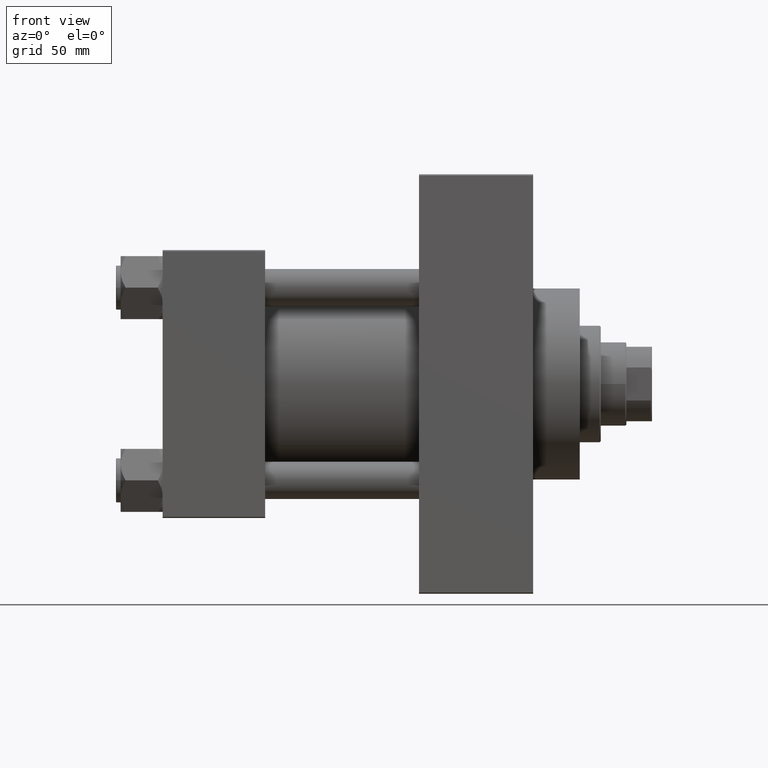
[diagram: clean part render]
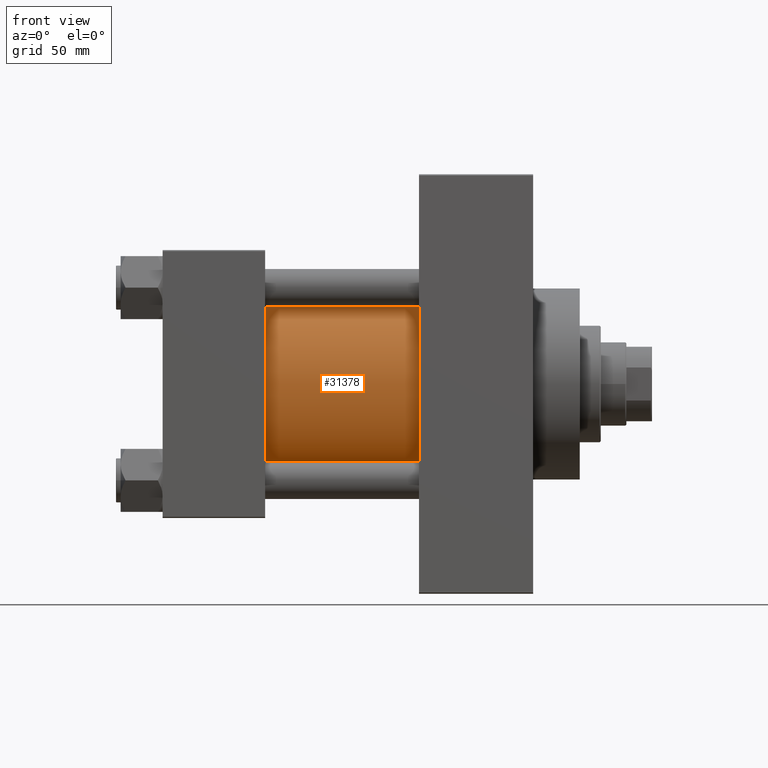
[diagram: same view with one face highlighted and labeled with its STEP entity id]
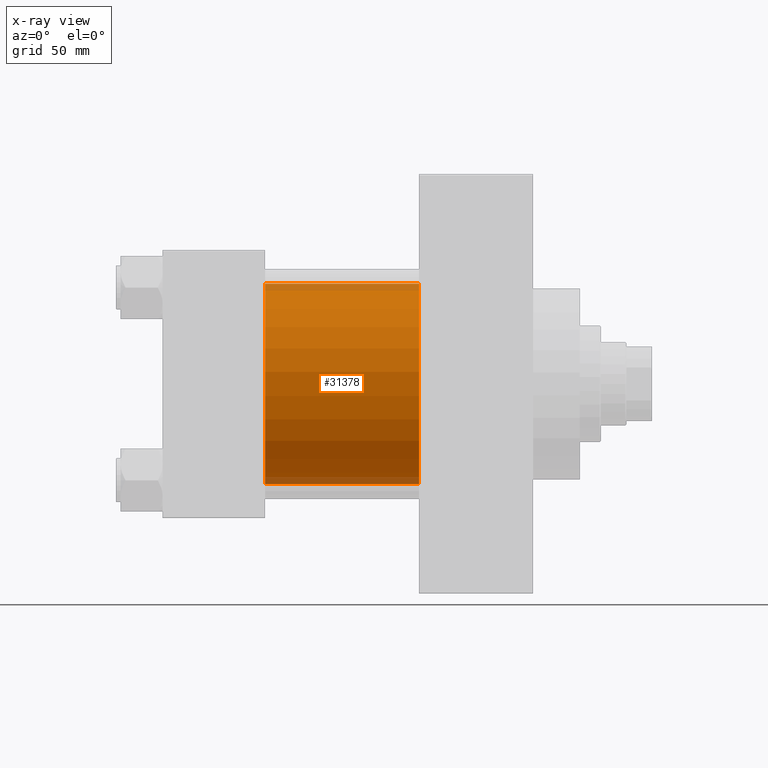
[diagram: x-ray of the same camera — body ghosted, the highlighted face saturated]
A machine part, front view. The second image highlights one B-rep face of the part: STEP entity #31378.
The next image is the same camera in x-ray: the body ghosted, the highlighted face saturated — about 7% of this face is hidden behind the body in this view.
In plain terms, the highlighted cylindrical surface (partial cylindrical patch) has radius 43 mm, axis along (-1, -0, -0).
Its self-contained STEP definition (entity closure, byte-faithful):
#1421 = CARTESIAN_POINT ( 'NONE',  ( 110.0000000000000000, -2.602085213965210642E-15, 0.000000000000000000 ) ) ;
#2237 = EDGE_CURVE ( 'NONE', #33188, #12917, #37916, .T. ) ;
#2295 = CARTESIAN_POINT ( 'NONE',  ( 110.0000000000000000, -2.602085213965210642E-15, 43.00000000000000000 ) ) ;
#4469 = CARTESIAN_POINT ( 'NONE',  ( 110.0000000000000000, -2.602085213965210642E-15, 43.00000000000000000 ) ) ;
#4617 = ORIENTED_EDGE ( 'NONE', *, *, #33350, .F. ) ;
#6974 = CARTESIAN_POINT ( 'NONE',  ( 44.00000000000000000, -2.602085213965210642E-15, 0.000000000000000000 ) ) ;
#9912 = CARTESIAN_POINT ( 'NONE',  ( 110.0000000000000000, 2.663896022368408223E-15, -43.00000000000000000 ) ) ;
#11688 = AXIS2_PLACEMENT_3D ( 'NONE', #1421, #19754, #19275 ) ;
#12048 = EDGE_CURVE ( 'NONE', #15054, #12917, #13186, .T. ) ;
#12917 = VERTEX_POINT ( 'NONE', #20030 ) ;
#13186 = LINE ( 'NONE', #34174, #40062 ) ;
#13754 = DIRECTION ( 'NONE',  ( 1.000000000000000000, -0.000000000000000000, 0.000000000000000000 ) ) ;
#15054 = VERTEX_POINT ( 'NONE', #9912 ) ;
#15091 = CYLINDRICAL_SURFACE ( 'NONE', #47130, 43.00000000000000000 ) ;
#16316 = CIRCLE ( 'NONE', #11688, 43.00000000000000000 ) ;
#16522 = ORIENTED_EDGE ( 'NONE', *, *, #39512, .T. ) ;
#19275 = DIRECTION ( 'NONE',  ( 0.000000000000000000, 0.000000000000000000, -1.000000000000000000 ) ) ;
#19658 = LINE ( 'NONE', #4469, #33426 ) ;
#19754 = DIRECTION ( 'NONE',  ( 1.000000000000000000, 0.000000000000000000, 0.000000000000000000 ) ) ;
#20030 = CARTESIAN_POINT ( 'NONE',  ( 44.00000000000000000, 2.663896022368408223E-15, -43.00000000000000000 ) ) ;
#22558 = FACE_OUTER_BOUND ( 'NONE', #41587, .T. ) ;
#23294 = AXIS2_PLACEMENT_3D ( 'NONE', #6974, #13754, #28464 ) ;
#23689 = CARTESIAN_POINT ( 'NONE',  ( 110.0000000000000000, -2.602085213965210642E-15, 0.000000000000000000 ) ) ;
#24872 = ORIENTED_EDGE ( 'NONE', *, *, #12048, .F. ) ;
#28246 = CARTESIAN_POINT ( 'NONE',  ( 44.00000000000000000, -2.602085213965210642E-15, 43.00000000000000000 ) ) ;
#28464 = DIRECTION ( 'NONE',  ( 0.000000000000000000, 0.000000000000000000, 1.000000000000000000 ) ) ;
#29795 = DIRECTION ( 'NONE',  ( 0.000000000000000000, 0.000000000000000000, 1.000000000000000000 ) ) ;
#31378 = ADVANCED_FACE ( 'NONE', ( #22558 ), #15091, .T. ) ;
#31843 = VERTEX_POINT ( 'NONE', #2295 ) ;
#33188 = VERTEX_POINT ( 'NONE', #28246 ) ;
#33350 = EDGE_CURVE ( 'NONE', #31843, #15054, #16316, .T. ) ;
#33426 = VECTOR ( 'NONE', #33675, 1000.000000000000000 ) ;
#33675 = DIRECTION ( 'NONE',  ( -1.000000000000000000, -0.000000000000000000, -0.000000000000000000 ) ) ;
#34174 = CARTESIAN_POINT ( 'NONE',  ( 110.0000000000000000, 2.663896022368408223E-15, -43.00000000000000000 ) ) ;
#37916 = CIRCLE ( 'NONE', #23294, 43.00000000000000000 ) ;
#39512 = EDGE_CURVE ( 'NONE', #31843, #33188, #19658, .T. ) ;
#40062 = VECTOR ( 'NONE', #45252, 1000.000000000000000 ) ;
#41587 = EDGE_LOOP ( 'NONE', ( #24872, #4617, #16522, #42590 ) ) ;
#42590 = ORIENTED_EDGE ( 'NONE', *, *, #2237, .T. ) ;
#44719 = DIRECTION ( 'NONE',  ( -1.000000000000000000, -0.000000000000000000, -0.000000000000000000 ) ) ;
#45252 = DIRECTION ( 'NONE',  ( -1.000000000000000000, -0.000000000000000000, -0.000000000000000000 ) ) ;
#47130 = AXIS2_PLACEMENT_3D ( 'NONE', #23689, #44719, #29795 ) ;